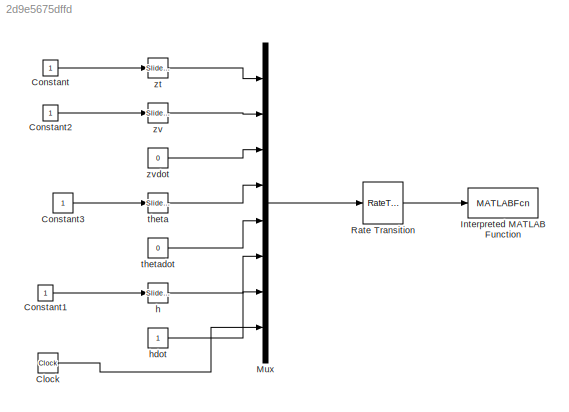
MODEL slx_2d9e5675dffd
KIND model
CONFIG AbsTol = auto
CONFIG EnableMultiTasking = off
CONFIG FixedStep = auto
CONFIG MaxStep = 0.1
CONFIG MinStep = auto
CONFIG RelTol = 1e-3
CONFIG SampleTimeConstraint = Unconstrained
CONFIG Solver = ode45
CONFIG SolverName = ode45
CONFIG StartTime = 0.0
CONFIG StopTime = 10000
BLOCK [Clock] Clock
BLOCK [Constant] Constant
BLOCK [Constant] Constant1
BLOCK [Constant] Constant2
BLOCK [Constant] Constant3
BLOCK [MATLABFcn] Interpreted MATLAB Function
  MATLABFcn = planar_vtol_animation(u)
  OutputDimensions = -0
  Ports = [1]
BLOCK [Mux] Mux
  DisplayOption = bar
  Inputs = 8
  Ports = [8, 1]
BLOCK [RateTransition] Rate Transition
  OutPortSampleTime = P.t_plot
BLOCK [Reference] h  REF=simulink/Math
Operations/Slider
Gain
  Ports = [1, 1]
  SourceBlock = simulink/Math\nOperations/Slider\nGain
  SourceProductBaseCode = SL
  SourceProductName = Simulink
  SourceType = Slider Gain
BLOCK [Constant] hdot
BLOCK [Reference] theta  REF=simulink/Math
Operations/Slider
Gain
  Ports = [1, 1]
  SourceBlock = simulink/Math\nOperations/Slider\nGain
  SourceProductBaseCode = SL
  SourceProductName = Simulink
  SourceType = Slider Gain
BLOCK [Constant] thetadot
  Value = 0
BLOCK [Reference] zt  REF=simulink/Math
Operations/Slider
Gain
  Ports = [1, 1]
  SourceBlock = simulink/Math\nOperations/Slider\nGain
  SourceProductBaseCode = SL
  SourceProductName = Simulink
  SourceType = Slider Gain
BLOCK [Reference] zv  REF=simulink/Math
Operations/Slider
Gain
  Ports = [1, 1]
  SourceBlock = simulink/Math\nOperations/Slider\nGain
  SourceProductBaseCode = SL
  SourceProductName = Simulink
  SourceType = Slider Gain
BLOCK [Constant] zvdot
  Value = 0
LINE Clock:1 -> Mux:8
LINE Constant1:1 -> h:1
LINE Constant2:1 -> zv:1
LINE Constant3:1 -> theta:1
LINE Constant:1 -> zt:1
LINE Mux:1 -> Rate Transition:1
LINE Rate Transition:1 -> Interpreted MATLAB Function:1
LINE h:1 -> Mux:6
LINE hdot:1 -> Mux:7
LINE theta:1 -> Mux:4
LINE thetadot:1 -> Mux:5
LINE zt:1 -> Mux:1
LINE zv:1 -> Mux:2
LINE zvdot:1 -> Mux:3
